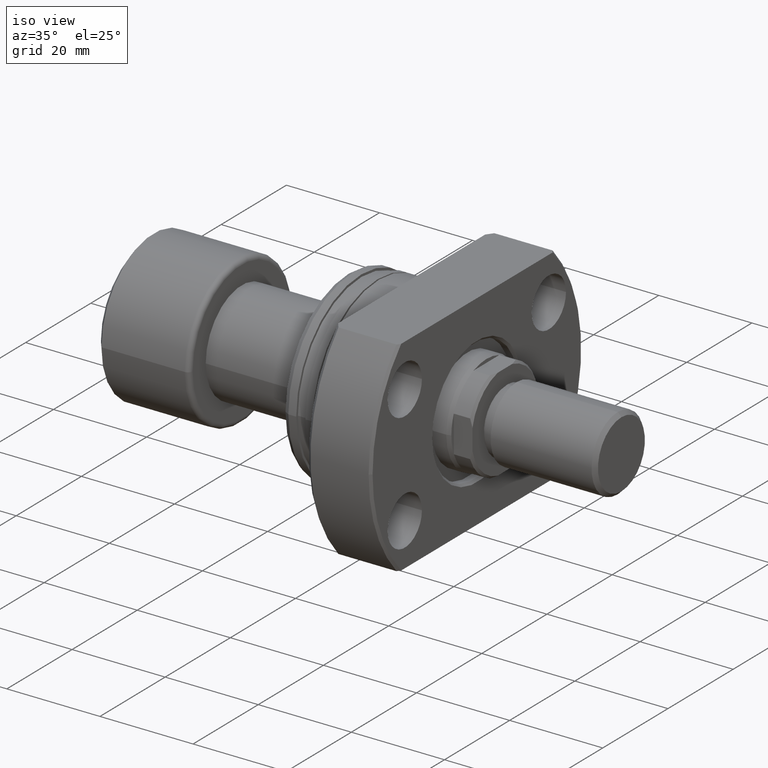
[diagram: clean part render]
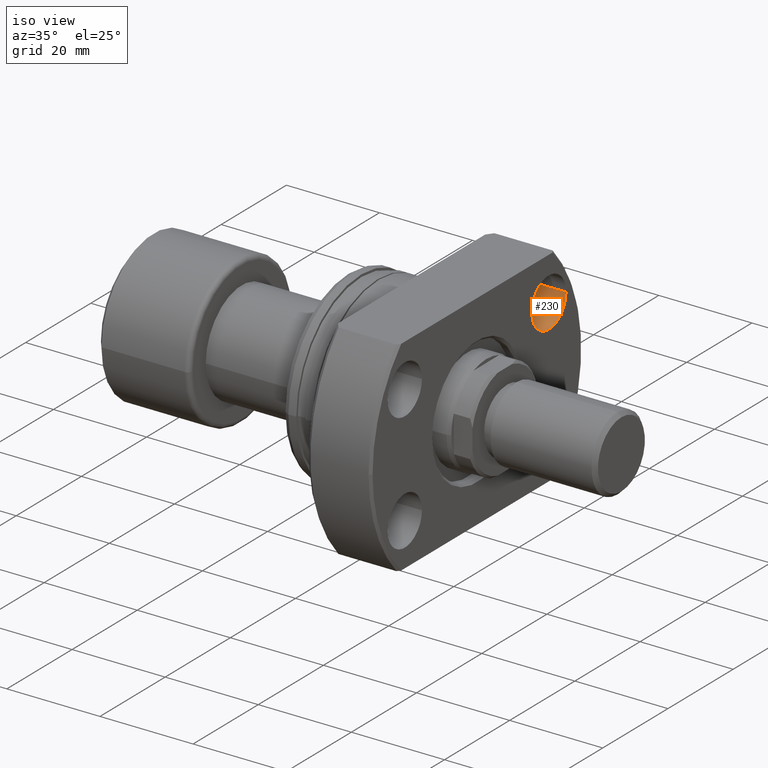
[diagram: same view with one face highlighted and labeled with its STEP entity id]
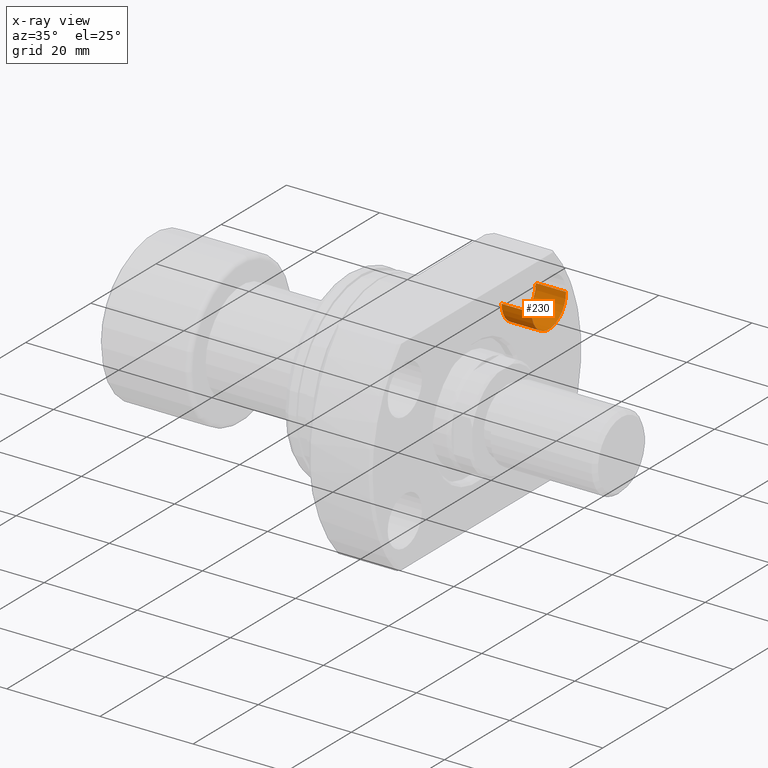
[diagram: x-ray of the same camera — body ghosted, the highlighted face saturated]
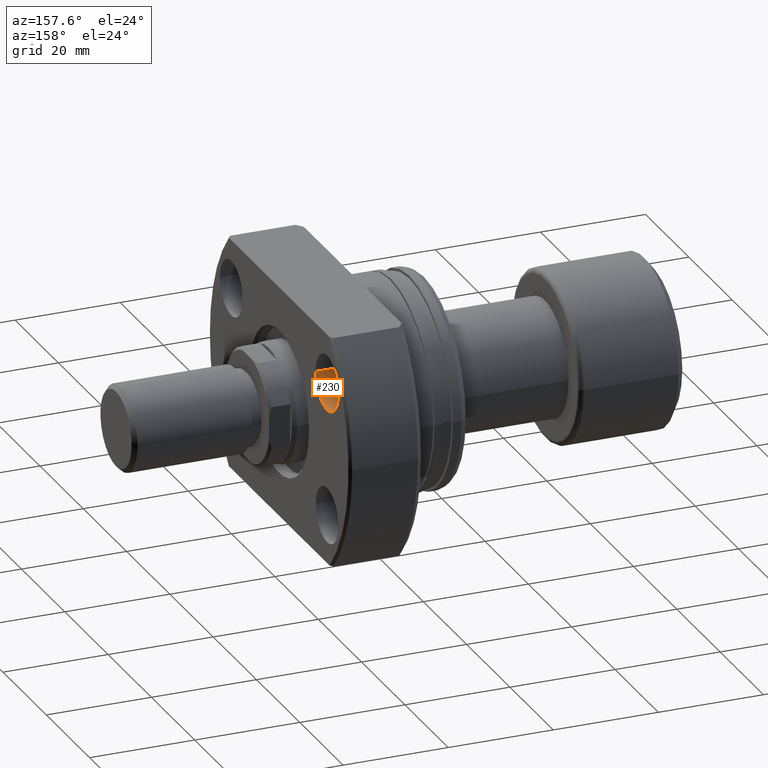
[diagram: same view with one face highlighted and labeled with its STEP entity id]
A machine part, iso view. The second image highlights one B-rep face of the part: STEP entity #230.
The next image is the same camera in x-ray: the body ghosted, the highlighted face saturated — about 0% of this face is hidden behind the body in this view.
A second angle (auxiliary view) of the same face is appended — the face is thin or edge-on in the first view.
In plain terms, the highlighted cylindrical surface (edge-blend (fillet) strip) has radius 5.25 mm, axis along (1, -0, 0).
Its self-contained STEP definition (entity closure, byte-faithful):
#70 = CARTESIAN_POINT ( 'NONE',  ( 21.00000000000079581, 27.34999999999939746, 12.74999999999999822 ) ) ;
#96 = LINE ( 'NONE', #1245, #1033 ) ;
#191 = AXIS2_PLACEMENT_3D ( 'NONE', #3352, #805, #1941 ) ;
#230 = ADVANCED_FACE ( 'NONE', ( #2684 ), #2430, .F. ) ;
#336 = CARTESIAN_POINT ( 'NONE',  ( 21.00000000000049027, 16.84999999999939746, 12.74999999999999822 ) ) ;
#384 = ORIENTED_EDGE ( 'NONE', *, *, #2898, .T. ) ;
#410 = EDGE_CURVE ( 'NONE', #1922, #3135, #1805, .T. ) ;
#627 = VECTOR ( 'NONE', #1435, 1000.000000000000000 ) ;
#714 = DIRECTION ( 'NONE',  ( 2.907726969256361977E-14, 1.000000000000000000, 0.000000000000000000 ) ) ;
#805 = DIRECTION ( 'NONE',  ( 1.000000000000000000, -2.886466111666351885E-14, 0.000000000000000000 ) ) ;
#901 = CARTESIAN_POINT ( 'NONE',  ( 27.50000000000049027, 16.84999999999920917, 12.74999999999999822 ) ) ;
#903 = VERTEX_POINT ( 'NONE', #70 ) ;
#921 = DIRECTION ( 'NONE',  ( 1.000000000000000000, -2.886466111666352516E-14, -0.000000000000000000 ) ) ;
#928 = AXIS2_PLACEMENT_3D ( 'NONE', #3204, #2641, #1238 ) ;
#930 = ORIENTED_EDGE ( 'NONE', *, *, #1882, .F. ) ;
#1025 = CARTESIAN_POINT ( 'NONE',  ( 21.00000000000049027, 16.84999999999939746, 12.74999999999999822 ) ) ;
#1033 = VECTOR ( 'NONE', #921, 1000.000000000000000 ) ;
#1238 = DIRECTION ( 'NONE',  ( 2.907726969256361977E-14, 1.000000000000000000, 0.000000000000000000 ) ) ;
#1245 = CARTESIAN_POINT ( 'NONE',  ( 21.00000000000079581, 27.34999999999939746, 12.74999999999999822 ) ) ;
#1275 = EDGE_LOOP ( 'NONE', ( #2374, #384, #1311, #930 ) ) ;
#1311 = ORIENTED_EDGE ( 'NONE', *, *, #410, .T. ) ;
#1435 = DIRECTION ( 'NONE',  ( 1.000000000000000000, -2.886466111666352516E-14, -0.000000000000000000 ) ) ;
#1609 = CARTESIAN_POINT ( 'NONE',  ( 27.50000000000079581, 27.34999999999921272, 12.74999999999999822 ) ) ;
#1805 = CIRCLE ( 'NONE', #191, 5.250000000000000888 ) ;
#1882 = EDGE_CURVE ( 'NONE', #903, #3135, #96, .T. ) ;
#1922 = VERTEX_POINT ( 'NONE', #901 ) ;
#1941 = DIRECTION ( 'NONE',  ( 2.907726969256361977E-14, 1.000000000000000000, 0.000000000000000000 ) ) ;
#1978 = AXIS2_PLACEMENT_3D ( 'NONE', #2411, #3279, #714 ) ;
#2374 = ORIENTED_EDGE ( 'NONE', *, *, #2396, .F. ) ;
#2396 = EDGE_CURVE ( 'NONE', #3544, #903, #3115, .T. ) ;
#2411 = CARTESIAN_POINT ( 'NONE',  ( 21.00000000000064304, 22.09999999999939746, 12.74999999999999822 ) ) ;
#2430 = CYLINDRICAL_SURFACE ( 'NONE', #1978, 5.250000000000000888 ) ;
#2641 = DIRECTION ( 'NONE',  ( 1.000000000000000000, -2.886466111666351885E-14, 0.000000000000000000 ) ) ;
#2684 = FACE_OUTER_BOUND ( 'NONE', #1275, .T. ) ;
#2888 = LINE ( 'NONE', #336, #627 ) ;
#2898 = EDGE_CURVE ( 'NONE', #3544, #1922, #2888, .T. ) ;
#3115 = CIRCLE ( 'NONE', #928, 5.250000000000000888 ) ;
#3135 = VERTEX_POINT ( 'NONE', #1609 ) ;
#3204 = CARTESIAN_POINT ( 'NONE',  ( 21.00000000000064304, 22.09999999999939746, 12.74999999999999822 ) ) ;
#3279 = DIRECTION ( 'NONE',  ( 1.000000000000000000, -2.886466111666352516E-14, -0.000000000000000000 ) ) ;
#3352 = CARTESIAN_POINT ( 'NONE',  ( 27.50000000000064304, 22.09999999999920917, 12.74999999999999822 ) ) ;
#3544 = VERTEX_POINT ( 'NONE', #1025 ) ;